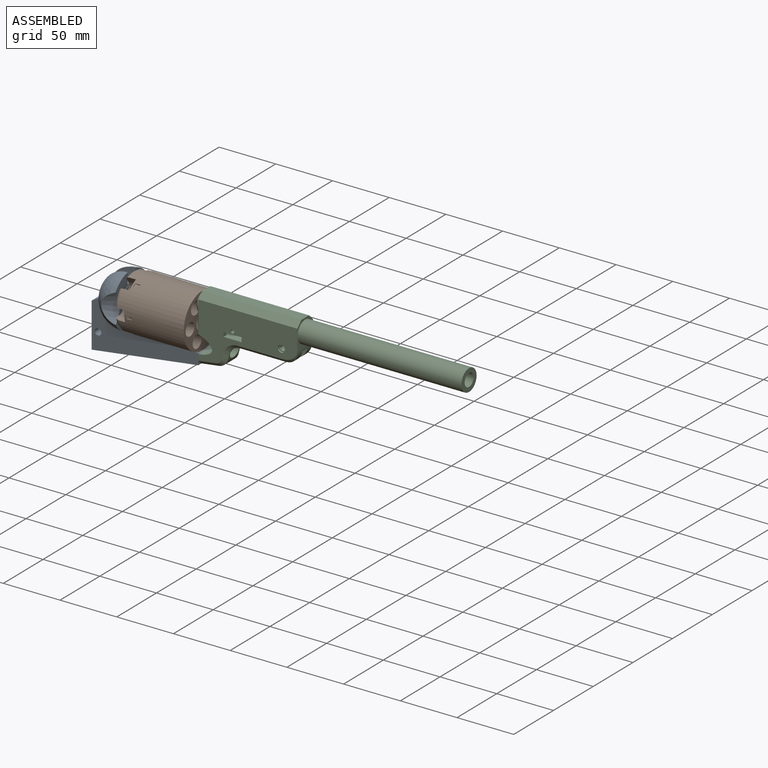
[diagram: assembled view]
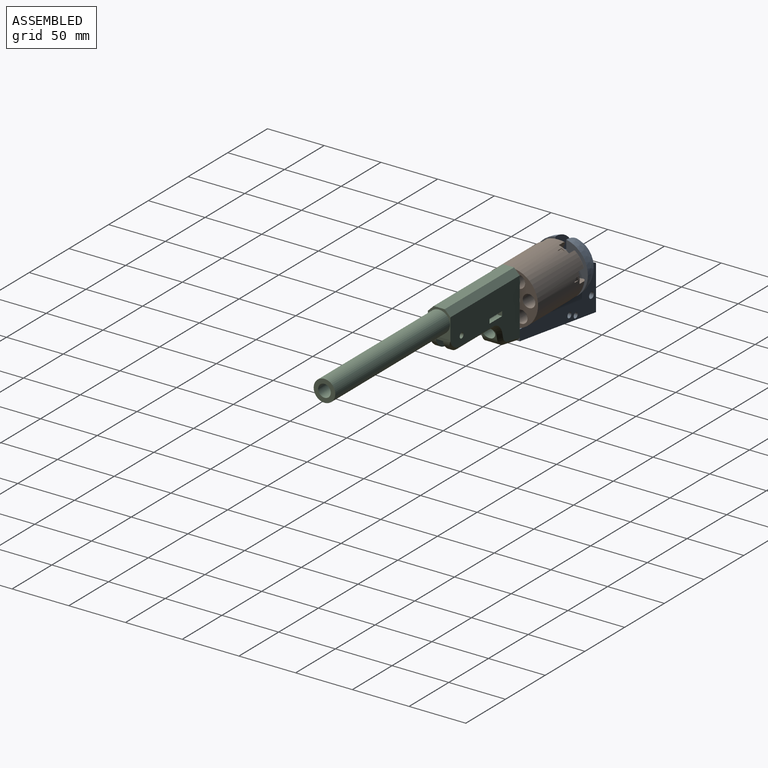
[diagram: assembled view, second angle]
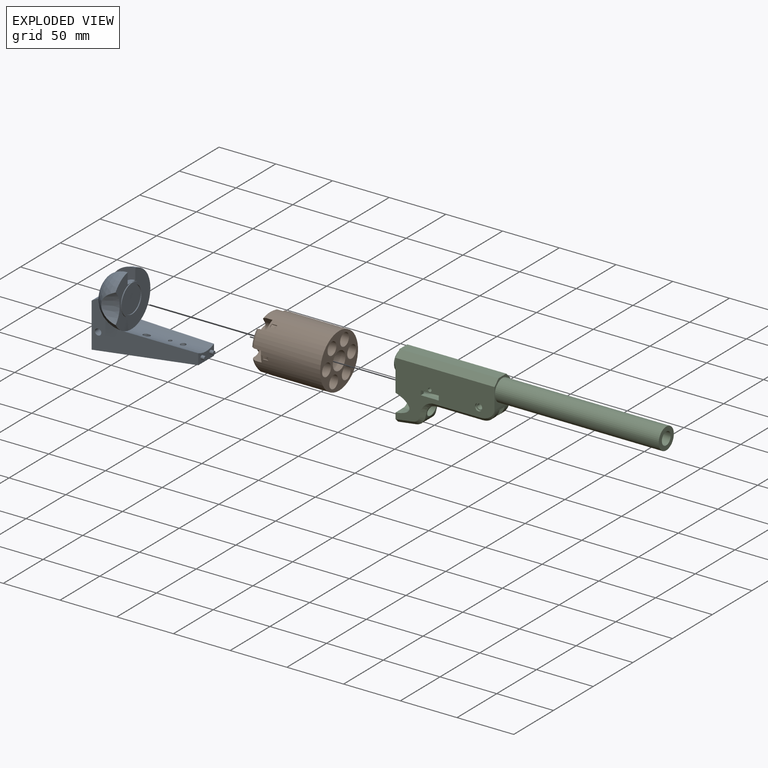
[diagram: exploded view]
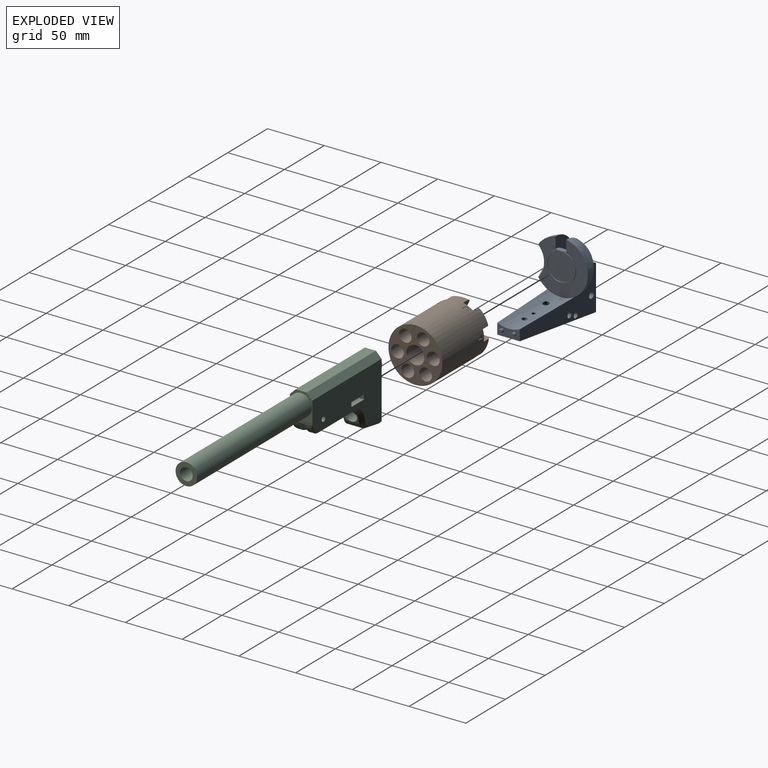
[diagram: exploded view, second angle]
ASSEMBLY  parts=3 mates=2
PART A: 56 faces, bbox 96.4x49x66.9 mm
  f0: cylinder r=23.81mm len=65.88mm, axis (-1,0,0), area 1444.5mm2, adj f1,f2,f3,f4,f5,f6,f7,f8
  f1: cylinder r=1.59mm len=7.36mm, axis (0,0,-1), area 73.4mm2, adj f0,f11
  f2: cylinder r=2.38mm len=4.76mm, axis (0,0,-1), area 13.7mm2, adj f0,f3,f5,f12
  f3: plane 1.59x1.59mm, normal (0,-1,0), area 2.5mm2, adj f0,f2,f4,f12
  f4: cylinder r=2.38mm len=4.76mm, axis (0,0,-1), area 13.7mm2, adj f0,f3,f5,f12
  f5: plane 65.62x60.33mm, normal (0,1,0), area 1429.2mm2, adj f0,f2,f4,f6,f11,f12,f13,f14
  f6: plane 47.29x44.01mm, normal (1,0,0), area 1523.5mm2, adj f0,f5,f19,f20,f23,f24,f25
  f7: plane 92.87x43.08mm, normal (0.03,-1,0), area 1628.9mm2, adj f0,f8,f13,f16,f17,f18,f19,f26
  f8: plane 19.84x9.53mm, normal (1,0,0), area 144.3mm2, adj f0,f7,f9,f16,f27,f28
  f9: plane 92.87x43.08mm, normal (0.03,1,0), area 1593.2mm2, adj f0,f8,f16,f24,f29,f30,f31,f32
  f10: cylinder r=2.38mm len=10.53mm, axis (0.12,0,-0.99), area 150mm2, adj f0,f16
  f11: plane 20.64x9.53mm, normal (0,0,-1), area 143.3mm2, adj f1,f5,f14,f15,f25
  f12: plane 24.61x9.53mm, normal (0,0,-1), area 199.3mm2, adj f2,f3,f4,f5,f14,f22,f25
  f13: cylinder r=2.78mm len=7.85mm, axis (0,-1,0), area 136.4mm2, adj f5,f7
  f14: cylinder r=4.76mm len=9.53mm, axis (0,0,1), area 86.4mm2, adj f5,f11,f12,f25
  f15: cylinder r=4.76mm len=9.53mm, axis (0,0,1), area 57.3mm2, adj f5,f11,f16,f25
  f16: plane 93.22x26.55mm, normal (0.12,0,-0.99), area 1385.8mm2, adj f5,f7,f8,f9,f10,f15,f17,f25
  f17: plane 39.11x7.94mm, normal (-1,0,0), area 310.4mm2, adj f5,f7,f16,f18
  f18: plane 7.94x5.84mm, normal (-0.48,0,0.88), area 37.3mm2, adj f5,f7,f17,f19,f26
  f19: sphere r=23.81mm, area 907.4mm2, adj f5,f6,f7,f18,f23,f26
  f20: cylinder r=13.49mm len=13.49mm, axis (0,-1,0), area 165.7mm2, adj f5,f6,f25,f40
  f21: cylinder r=13.49mm len=9.53mm, axis (0,-1,0), area 40.9mm2, adj f5,f22,f25,f40
  f22: extruded ~18.94x10.26mm, area 206.6mm2, adj f5,f12,f21,f25
  f23: cone r=18.92mm half-angle=24deg, axis (1,0,0), area 266.9mm2, adj f6,f19
  f24: sphere r=23.81mm, area 1150.7mm2, adj f6,f9,f25,f33,f34
  f25: plane 65.62x60.33mm, normal (0,-1,0), area 1244.1mm2, adj f6,f11,f12,f14,f15,f16,f20,f21
  f26: plane 0.16x0.1mm, normal (0,0,1), area 0mm2, adj f7,f18,f19
  f27: cylinder r=1.59mm len=3.18mm, axis (-1,0,0), area 31.7mm2, adj f8,f42
  f28: cylinder r=1.59mm len=3.18mm, axis (-1,0,0), area 31.7mm2, adj f8,f43
  f29: cylinder r=2.78mm len=7.77mm, axis (0,-1,0), area 134.9mm2, adj f9,f25
  f30: cylinder r=2.38mm len=6.97mm, axis (0,-1,0), area 103.7mm2, adj f9,f25
  f31: cylinder r=2.38mm len=7.2mm, axis (0,-1,0), area 107.1mm2, adj f9,f25
  f32: plane 39.11x7.94mm, normal (-1,0,0), area 310.4mm2, adj f9,f16,f25,f33
  f33: plane 7.94x5.84mm, normal (-0.48,0,0.88), area 37.3mm2, adj f9,f24,f25,f32,f34
  f34: plane 0.16x0.1mm, normal (0,0,1), area 0mm2, adj f9,f24,f33
  f35: cylinder r=1.98mm len=8.36mm, axis (0.12,0,-0.99), area 99mm2, adj f16,f44
  f36: cylinder r=1.98mm len=8.36mm, axis (0.12,0,-0.99), area 99mm2, adj f16,f45
  f37: plane 51.15x13.64mm, normal (0,-1,0), area 432.4mm2, adj f16,f38,f39,f46,f47,f48,f49
  f38: plane 51.14x8.12mm, normal (0.99,0,-0.16), area 202.4mm2, adj f16,f25,f37,f41,f48,f50
  f39: plane 24x5.56mm, normal (-0.99,0,0.16), area 112.3mm2, adj f16,f25,f37,f41,f49,f50
  f40: cylinder r=4.76mm len=10.32mm, axis (1,0,0), area 302.3mm2, adj f20,f21,f51
  f41: plane 9.64x2.38mm, normal (0,0,-1), area 23mm2, adj f25,f38,f39,f50
  f42: plane 3.18x3.18mm, normal (1,0,0), area 7.9mm2, adj f27
  f43: plane 3.18x3.18mm, normal (1,0,0), area 7.9mm2, adj f28
  f44: cone r=0mm half-angle=59deg, axis (0.12,0,-0.99), area 14.4mm2, adj f35
  f45: cone r=0mm half-angle=59deg, axis (0.12,0,-0.99), area 14.4mm2, adj f36
  f46: plane 10.39x1.3mm, normal (1,0,0), area 8.2mm2, adj f37,f52
  f47: plane 4.98x3.31mm, normal (-1,0,0), area 8.4mm2, adj f37,f48,f50,f52
  f48: plane 5.44x3.18mm, normal (0,0,-1), area 17.3mm2, adj f37,f38,f47,f50
  f49: plane 10.85x3.18mm, normal (-1,0,-0.01), area 27.3mm2, adj f37,f39,f50,f52
  f50: plane 35.4x11.14mm, normal (0,1,0), area 286.2mm2, adj f38,f39,f41,f47,f48,f49,f51,f52
  f51: plane 23.04x18.76mm, normal (1,0,0), area 290.1mm2, adj f40,f50,f52
  f52: cylinder r=11.51mm len=23.02mm, axis (1,0,0), area 286.9mm2, adj f46,f47,f49,f50,f51,f53
  f53: plane 26.99x26.99mm, normal (1,0,0), area 155.9mm2, adj f52,f54
  f54: cylinder r=13.49mm len=26.99mm, axis (-1,0,0), area 67.3mm2, adj f53,f55
  f55: plane 26.99x26.99mm, normal (-1,0,0), area 572mm2, adj f54
PART B: 102 faces, bbox 66.6x52x56.6 mm
  f0: plane 12.73x7.6mm, normal (-1,0,0), area 7.3mm2, adj f10,f66,f85,f96
  f1: cylinder r=3.17mm len=6.35mm, axis (-1,0,0), area 99.5mm2, adj f8,f67
  f2: plane 2.82x1.89mm, normal (1,0,0), area 1.5mm2, adj f3,f5,f6,f66
  f3: extruded ~4.76x2.85mm, area 14.7mm2, adj f2,f4,f5,f6
  f4: plane 2.82x1.89mm, normal (-1,0,0), area 1.5mm2, adj f3,f5,f6,f66
  f5: plane 4.76x0.86mm, normal (0,-0.5,-0.87), area 3.8mm2, adj f2,f3,f4,f66
  f6: plane 4.76x0.86mm, normal (0,0.5,0.87), area 3.8mm2, adj f2,f3,f4,f66
  f7: cylinder r=4.17mm len=8.33mm, axis (-1,0,0), area 41.6mm2, adj f8,f12
  f8: plane 8.33x8.33mm, normal (-1,0,0), area 22.9mm2, adj f1,f7
  f9: cylinder r=4.96mm len=9.53mm, axis (-1,0,0), area 148.4mm2, adj f10,f11,f12,f77
  f10: plane 9.89x6.1mm, normal (0,-0.5,-0.87), area 59.2mm2, adj f0,f9,f12,f66,f77,f96
  f11: plane 9.89x6.1mm, normal (0,0.5,0.87), area 59.2mm2, adj f9,f12,f13,f66,f77,f97
  f12: plane 13.18x12.57mm, normal (-1,0,0), area 53.3mm2, adj f7,f9,f10,f11,f66
  f13: plane 14.7x1.61mm, normal (-1,0,0), area 7.3mm2, adj f11,f23,f66,f97
  f14: cylinder r=3.17mm len=6.35mm, axis (-1,0,0), area 99.5mm2, adj f21,f69
  f15: plane 2.82x1.89mm, normal (1,0,0), area 1.5mm2, adj f16,f18,f19,f66
  f16: extruded ~4.76x2.85mm, area 14.7mm2, adj f15,f17,f18,f19
  f17: plane 2.82x1.89mm, normal (-1,0,0), area 1.5mm2, adj f16,f18,f19,f66
  f18: plane 4.76x0.86mm, normal (0,0.5,-0.87), area 3.8mm2, adj f15,f16,f17,f66
  f19: plane 4.76x0.86mm, normal (0,-0.5,0.87), area 3.8mm2, adj f15,f16,f17,f66
  f20: cylinder r=4.17mm len=8.33mm, axis (-1,0,0), area 41.6mm2, adj f21,f25
  f21: plane 8.33x8.33mm, normal (-1,0,0), area 22.9mm2, adj f14,f20
  f22: cylinder r=4.96mm len=9.53mm, axis (-1,0,0), area 148.4mm2, adj f23,f24,f25,f77
  f23: plane 9.89x6.1mm, normal (0,0.5,-0.87), area 59.2mm2, adj f13,f22,f25,f66,f77,f97
  f24: plane 9.89x6.1mm, normal (0,-0.5,0.87), area 59.2mm2, adj f22,f25,f26,f66,f77,f98
  f25: plane 13.18x12.57mm, normal (-1,0,0), area 53.3mm2, adj f20,f22,f23,f24,f66
  f26: plane 12.73x7.6mm, normal (-1,0,0), area 7.3mm2, adj f24,f36,f66,f98
  f27: cylinder r=3.17mm len=6.35mm, axis (-1,0,0), area 99.5mm2, adj f34,f71
  f28: plane 3x0.5mm, normal (1,0,0), area 1.5mm2, adj f29,f31,f32,f66
  f29: extruded ~4.76x3mm, area 14.7mm2, adj f28,f30,f31,f32
  f30: plane 3x0.5mm, normal (-1,0,0), area 1.5mm2, adj f29,f31,f32,f66
  f31: plane 4.76x0.99mm, normal (0,1,0), area 3.8mm2, adj f28,f29,f30,f66
  f32: plane 4.76x0.99mm, normal (0,-1,0), area 3.8mm2, adj f28,f29,f30,f66
  f33: cylinder r=4.17mm len=8.33mm, axis (-1,0,0), area 41.6mm2, adj f34,f38
  f34: plane 8.33x8.33mm, normal (-1,0,0), area 22.9mm2, adj f27,f33
  f35: cylinder r=4.96mm len=9.92mm, axis (-1,0,0), area 148.4mm2, adj f36,f37,f38,f77
  f36: plane 9.89x6.99mm, normal (0,1,0), area 59.2mm2, adj f26,f35,f38,f66,f77,f98
  f37: plane 9.89x6.99mm, normal (0,-1,0), area 59.2mm2, adj f35,f38,f39,f66,f77,f99
  f38: plane 12.1x9.92mm, normal (-1,0,0), area 53.3mm2, adj f33,f35,f36,f37,f66
  f39: plane 12.73x7.6mm, normal (-1,0,0), area 7.3mm2, adj f37,f49,f66,f99
  f40: cylinder r=3.17mm len=6.35mm, axis (-1,0,0), area 99.5mm2, adj f47,f73
  f41: plane 2.82x1.89mm, normal (1,0,0), area 1.5mm2, adj f42,f44,f45,f66
  f42: extruded ~4.76x2.85mm, area 14.7mm2, adj f41,f43,f44,f45
  f43: plane 2.82x1.89mm, normal (-1,0,0), area 1.5mm2, adj f42,f44,f45,f66
  f44: plane 4.76x0.86mm, normal (0,0.5,0.87), area 3.8mm2, adj f41,f42,f43,f66
  f45: plane 4.76x0.86mm, normal (0,-0.5,-0.87), area 3.8mm2, adj f41,f42,f43,f66
  f46: cylinder r=4.17mm len=8.33mm, axis (-1,0,0), area 41.6mm2, adj f47,f51
  f47: plane 8.33x8.33mm, normal (-1,0,0), area 22.9mm2, adj f40,f46
  f48: cylinder r=4.96mm len=9.53mm, axis (-1,0,0), area 148.4mm2, adj f49,f50,f51,f77
  f49: plane 9.89x6.1mm, normal (0,0.5,0.87), area 59.2mm2, adj f39,f48,f51,f66,f77,f99
  f50: plane 9.89x6.1mm, normal (0,-0.5,-0.87), area 59.2mm2, adj f48,f51,f52,f66,f77,f100
  f51: plane 13.18x12.57mm, normal (-1,0,0), area 53.3mm2, adj f46,f48,f49,f50,f66
  f52: plane 14.7x1.61mm, normal (-1,0,0), area 7.3mm2, adj f50,f62,f66,f100
  f53: cylinder r=3.17mm len=6.35mm, axis (-1,0,0), area 99.5mm2, adj f60,f75
  f54: plane 2.82x1.89mm, normal (1,0,0), area 1.5mm2, adj f55,f57,f58,f66
  f55: extruded ~4.76x2.85mm, area 14.7mm2, adj f54,f56,f57,f58
  f56: plane 2.82x1.89mm, normal (-1,0,0), area 1.5mm2, adj f55,f57,f58,f66
  f57: plane 4.76x0.86mm, normal (0,-0.5,0.87), area 3.8mm2, adj f54,f55,f56,f66
  f58: plane 4.76x0.86mm, normal (0,0.5,-0.87), area 3.8mm2, adj f54,f55,f56,f66
  f59: cylinder r=4.17mm len=8.33mm, axis (-1,0,0), area 41.6mm2, adj f60,f64
  f60: plane 8.33x8.33mm, normal (-1,0,0), area 22.9mm2, adj f53,f59
  f61: cylinder r=4.96mm len=9.53mm, axis (-1,0,0), area 148.4mm2, adj f62,f63,f64,f77
  f62: plane 9.89x6.1mm, normal (0,-0.5,0.87), area 59.2mm2, adj f52,f61,f64,f66,f77,f100
  f63: plane 9.89x6.1mm, normal (0,0.5,-0.87), area 59.2mm2, adj f61,f64,f66,f77,f81,f101
  f64: plane 13.18x12.57mm, normal (-1,0,0), area 53.3mm2, adj f59,f61,f62,f63,f66
  f65: cone r=5.56mm half-angle=45deg, axis (1,0,0), area 91.7mm2, adj f83,f95
  f66: cylinder r=23.81mm len=58.74mm, axis (-1,0,0), area 8321.6mm2, adj f0,f2,f4,f5,f6,f10,f11,f12
  f67: cone r=5.56mm half-angle=45deg, axis (1,0,0), area 85.9mm2, adj f1,f68
  f68: bspline ~43.65x11.51mm, area 1527mm2, adj f67,f80
  f69: cone r=5.56mm half-angle=45deg, axis (1,0,0), area 85.9mm2, adj f14,f70
  f70: bspline ~43.65x11.51mm, area 1527mm2, adj f69,f80
  f71: cone r=5.56mm half-angle=45deg, axis (1,0,0), area 85.9mm2, adj f27,f72
  f72: bspline ~43.65x22.78mm, area 1527mm2, adj f71,f80
  f73: cone r=5.56mm half-angle=45deg, axis (1,0,0), area 85.9mm2, adj f40,f74
  f74: bspline ~43.65x11.51mm, area 1527mm2, adj f73,f80
  f75: cone r=5.56mm half-angle=45deg, axis (1,0,0), area 85.9mm2, adj f53,f76
  f76: bspline ~43.65x11.51mm, area 1527mm2, adj f75,f80
  f77: plane 40.28x39.03mm, normal (-1,0,0), area 459.8mm2, adj f9,f10,f11,f22,f23,f24,f35,f36
  f78: cylinder r=11.11mm len=22.23mm, axis (-1,0,0), area 221.7mm2, adj f77,f79
  f79: plane 22.23x22.23mm, normal (-1,0,0), area 190mm2, adj f78,f82
  f80: plane 49.17x49.17mm, normal (1,0,0), area 1001.5mm2, adj f66,f68,f70,f72,f74,f76,f82,f83
  f81: plane 12.73x7.6mm, normal (-1,0,0), area 7.3mm2, adj f63,f66,f86,f101
  f82: cylinder r=7.94mm len=65.09mm, axis (1,0,0), area 3246.1mm2, adj f79,f80
  f83: bspline ~43.65x22.78mm, area 1527mm2, adj f65,f80
  f84: cylinder r=4.96mm len=9.92mm, axis (-1,0,0), area 148.4mm2, adj f77,f85,f86,f87
  f85: plane 9.89x6.99mm, normal (0,1,0), area 59.2mm2, adj f0,f66,f77,f84,f87,f96
  f86: plane 9.89x6.99mm, normal (0,-1,0), area 59.2mm2, adj f66,f77,f81,f84,f87,f101
  f87: plane 12.1x9.92mm, normal (-1,0,0), area 53.3mm2, adj f66,f84,f85,f86,f88
  f88: cylinder r=4.17mm len=8.33mm, axis (-1,0,0), area 41.6mm2, adj f87,f89
  f89: plane 8.33x8.33mm, normal (-1,0,0), area 22.9mm2, adj f88,f95
  f90: plane 3x0.5mm, normal (1,0,0), area 1.5mm2, adj f66,f91,f93,f94
  f91: extruded ~4.76x3mm, area 14.7mm2, adj f90,f92,f93,f94
  f92: plane 3x0.5mm, normal (-1,0,0), area 1.5mm2, adj f66,f91,f93,f94
  f93: plane 4.76x0.99mm, normal (0,1,0), area 3.8mm2, adj f66,f90,f91,f92
  f94: plane 4.76x0.99mm, normal (0,-1,0), area 3.8mm2, adj f66,f90,f91,f92
  f95: cylinder r=3.17mm len=6.35mm, axis (-1,0,0), area 95.5mm2, adj f65,f89
  f96: torus R=20.14mm, axis (-1,0,0), area 64.6mm2, adj f0,f10,f77,f85
  f97: torus R=20.14mm, axis (-1,0,0), area 64.6mm2, adj f11,f13,f23,f77
  f98: torus R=20.14mm, axis (-1,0,0), area 64.6mm2, adj f24,f26,f36,f77
  f99: torus R=20.14mm, axis (-1,0,0), area 64.6mm2, adj f37,f39,f49,f77
  f100: torus R=20.14mm, axis (-1,0,0), area 64.6mm2, adj f50,f52,f62,f77
  f101: torus R=20.14mm, axis (-1,0,0), area 64.6mm2, adj f63,f77,f81,f86
PART C: 58 faces, bbox 235x20.6x57.2 mm
  f0: plane 87.31x48.87mm, normal (0,1,0), area 2606.8mm2, adj f3,f8,f14,f30,f31,f32,f33,f41
  f1: cylinder r=12.7mm len=19.84mm, axis (0,-1,0), area 202.5mm2, adj f2,f8,f34,f35,f36,f37,f42
  f2: plane 40.22x13.49mm, normal (0,0,-1), area 418mm2, adj f1,f24,f34,f35,f36,f38,f40,f41
  f3: plane 57.15x19.84mm, normal (1,0,0), area 485.1mm2, adj f0,f4,f5,f6,f7,f12,f13,f14
  f4: plane 87.31x49.69mm, normal (0,-1,0), area 2770.9mm2, adj f3,f8,f13,f26,f27,f28,f29,f37
  f5: cylinder r=5.75mm len=29.89mm, axis (1,0,0), area 829.1mm2, adj f3,f21,f22,f23,f24,f57
  f6: cylinder r=6.35mm len=46.04mm, axis (1,0,0), area 1708.7mm2, adj f3,f10,f26,f27,f28,f29,f30,f31
  f7: plane 87.31x9.68mm, normal (0,0,1), area 845.5mm2, adj f3,f8,f13,f14
  f8: plane 23.27x19.84mm, normal (-1,0,0), area 151mm2, adj f0,f1,f4,f7,f13,f14,f15
  f9: cylinder r=5.56mm len=234.95mm, axis (1,0,0), area 8202.3mm2, adj f11,f16
  f10: cone r=0mm half-angle=59deg, axis (1,0,0), area 147.8mm2, adj f6
  f11: plane 12.7x12.7mm, normal (1,0,0), area 29.7mm2, adj f9,f12
  f12: torus R=6.35mm, axis (1,0,0), area 262.3mm2, adj f3,f11
  f13: plane 87.31x5.08mm, normal (0,-0.71,0.71), area 627.3mm2, adj f3,f4,f7,f8
  f14: plane 87.31x5.08mm, normal (0,0.71,0.71), area 627.3mm2, adj f0,f3,f7,f8
  f15: cylinder r=9.53mm len=144.46mm, axis (1,0,0), area 8645.7mm2, adj f8,f16
  f16: plane 19.05x19.05mm, normal (-1,0,0), area 188mm2, adj f9,f15
  f17: cone r=0mm half-angle=59deg, axis (1,0,0), area 9.2mm2, adj f18
  f18: cylinder r=1.59mm len=3.18mm, axis (1,0,0), area 31.7mm2, adj f3,f17
  f19: cone r=0mm half-angle=59deg, axis (1,0,0), area 9.2mm2, adj f20
  f20: cylinder r=1.59mm len=3.18mm, axis (1,0,0), area 31.7mm2, adj f3,f19
  f21: cylinder r=9.53mm len=13.49mm, axis (0,-1,0), area 151.2mm2, adj f5,f22,f23,f25,f45,f50
  f22: plane 4.41x3.63mm, normal (-0.97,0,-0.23), area 8.4mm2, adj f5,f21,f24,f48
  f23: plane 4.41x3.63mm, normal (-0.97,0,-0.23), area 8.4mm2, adj f5,f21,f24,f44
  f24: cylinder r=9.53mm len=13.49mm, axis (0,-1,0), area 102mm2, adj f2,f5,f22,f23,f43,f47
  f25: plane 16.11x14.29mm, normal (-0.14,0,-0.99), area 225.5mm2, adj f3,f21,f39,f46,f49
  f26: plane 3.97x3.89mm, normal (-1,0,0), area 14.6mm2, adj f4,f6,f27,f29
  f27: plane 15.88x3.89mm, normal (0,0,1), area 61.8mm2, adj f4,f6,f26,f28
  f28: plane 3.97x3.89mm, normal (1,0,0), area 14.6mm2, adj f4,f6,f27,f29
  f29: plane 15.88x3.89mm, normal (0,0,-1), area 61.8mm2, adj f4,f6,f26,f28
  f30: plane 15.88x3.89mm, normal (0,0,-1), area 61.8mm2, adj f0,f6,f31,f33
  f31: plane 3.97x3.89mm, normal (1,0,0), area 14.6mm2, adj f0,f6,f30,f32
  f32: plane 15.88x3.89mm, normal (0,0,1), area 61.8mm2, adj f0,f6,f31,f33
  f33: plane 3.97x3.89mm, normal (-1,0,0), area 14.6mm2, adj f0,f6,f30,f32
  f34: cylinder r=20.64mm len=32.07mm, axis (0,1,0), area 249.6mm2, adj f1,f2,f35,f36
  f35: plane 32.07x14.29mm, normal (0,1,0), area 317.2mm2, adj f1,f2,f34,f56
  f36: plane 32.07x14.29mm, normal (0,-1,0), area 317.2mm2, adj f1,f2,f34,f55
  f37: bspline ~12.7x12.7mm, area 50.4mm2, adj f1,f4,f38
  f38: plane 40.22x3.18mm, normal (0,-0.71,-0.71), area 180.6mm2, adj f2,f4,f37,f47
  f39: plane 15.6x5.36mm, normal (-0.13,-0.7,-0.7), area 60.9mm2, adj f3,f4,f25,f49
  f40: plane 0.03x0mm, normal (0,1,0), area 0mm2, adj f2,f42
  f41: plane 40.19x3.18mm, normal (0,0.71,-0.71), area 180.5mm2, adj f0,f2,f42,f43
  f42: bspline ~12.73x12.7mm, area 50.6mm2, adj f0,f1,f40,f41
  f43: cone r=12.7mm half-angle=45deg, axis (0,1,0), area 66.7mm2, adj f0,f24,f41,f44
  f44: plane 5.14x4.14mm, normal (-0.69,0.71,-0.16), area 20.4mm2, adj f0,f23,f43,f45
  f45: cone r=9.53mm half-angle=45deg, axis (0,-1,0), area 42.8mm2, adj f0,f21,f44,f46
  f46: plane 16.11x5.37mm, normal (-0.1,0.71,-0.7), area 72mm2, adj f0,f3,f25,f45
  f47: cone r=9.53mm half-angle=45deg, axis (0,-1,0), area 66.7mm2, adj f4,f24,f38,f48
  f48: plane 5.14x4.14mm, normal (-0.69,-0.71,-0.16), area 20.4mm2, adj f4,f22,f47,f50
  f49: plane 3.29x3.18mm, normal (-0.1,-0.71,-0.7), area 2.6mm2, adj f4,f25,f39,f50
  f50: cone r=6.35mm half-angle=45deg, axis (0,1,0), area 42.8mm2, adj f4,f21,f48,f49
  f51: cone r=0mm half-angle=59deg, axis (0,1,0), area 9.2mm2, adj f52
  f52: cylinder r=1.59mm len=3.18mm, axis (0,1,0), area 31.7mm2, adj f0,f51
  f53: cylinder r=3.17mm len=6.35mm, axis (0,1,0), area 31.7mm2, adj f0,f54
  f54: plane 6.35x6.35mm, normal (0,1,0), area 13.9mm2, adj f53,f55
  f55: cylinder r=2.38mm len=5.16mm, axis (0,1,0), area 77.2mm2, adj f36,f54
  f56: cylinder r=2.38mm len=6.75mm, axis (0,1,0), area 100.9mm2, adj f4,f35
  f57: bspline ~15.85x12.34mm, area 184.4mm2, adj f0,f3,f5
PLACE A t=(-94.45,17.61,2.38)mm fixed
PLACE B rot(axis=(-1,0,0),145.5deg) t=(-62.7,17.61,2.38)mm
PLACE C rot(axis=(0,0,-1),180deg) t=(-28.57,17.61,0.18)mm
MATE fastened A.f28 <-> C.f19  axis (1,0,0) through (-28.57,12.05,-24.03)mm
MATE revolute B.f96 <-> A.f0  axis (-1,0,0) through (-93.66,17.61,2.38)mm
